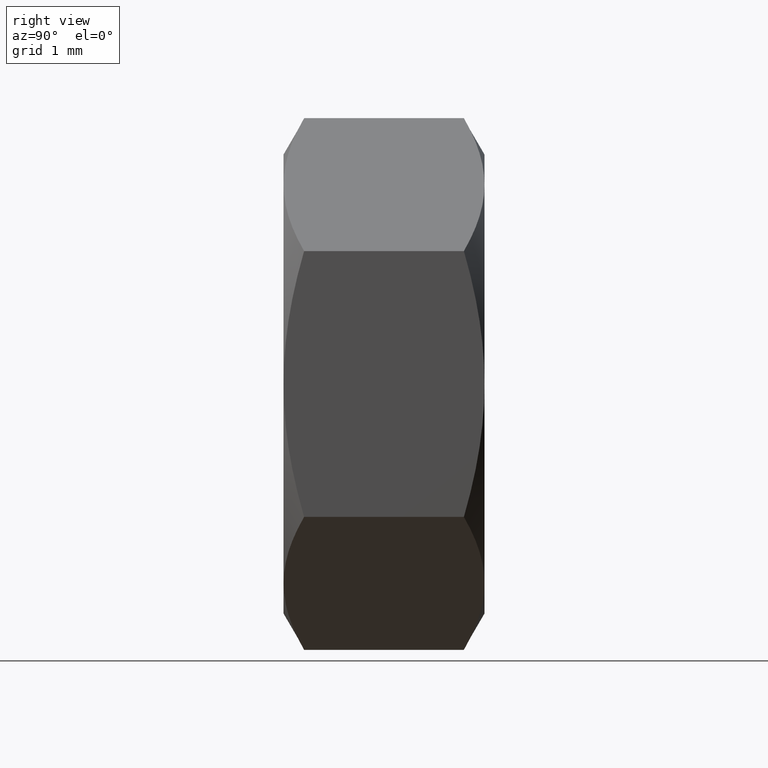
[diagram: clean part render]
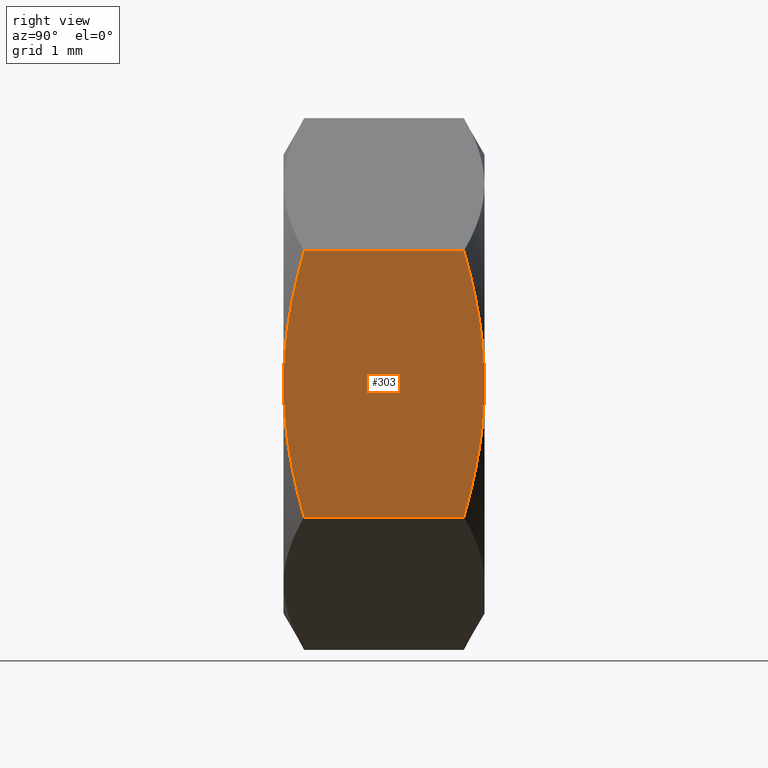
[diagram: same view with one face highlighted and labeled with its STEP entity id]
A machine part, right view. The second image highlights one B-rep face of the part: STEP entity #303.
In plain terms, the highlighted planar face has unit normal (-1, 0, 0).
Its self-contained STEP definition (entity closure, byte-faithful):
#22=PLANE('',#347);
#30=LINE('',#534,#37);
#31=LINE('',#548,#38);
#37=VECTOR('',#406,1000.);
#38=VECTOR('',#409,1000.);
#48=FACE_OUTER_BOUND('',#70,.T.);
#70=EDGE_LOOP('',(#234,#235,#236,#237,#238,#239));
#100=(
BOUNDED_CURVE()
B_SPLINE_CURVE(2,(#540,#541,#542),.UNSPECIFIED.,.F.,.F.)
B_SPLINE_CURVE_WITH_KNOTS((3,3),(-1.21715266222543,-0.88673192173023),
 .UNSPECIFIED.)
CURVE()
GEOMETRIC_REPRESENTATION_ITEM()
RATIONAL_B_SPLINE_CURVE((1.92205114401652,2.07072231740623,2.07072231740622))
REPRESENTATION_ITEM('')
);
#101=(
BOUNDED_CURVE()
B_SPLINE_CURVE(2,(#544,#545,#546),.UNSPECIFIED.,.F.,.F.)
B_SPLINE_CURVE_WITH_KNOTS((3,3),(-0.88673192173023,-0.556311181235028),
 .UNSPECIFIED.)
CURVE()
GEOMETRIC_REPRESENTATION_ITEM()
RATIONAL_B_SPLINE_CURVE((2.07072231740623,2.07072231740622,1.92205114401651))
REPRESENTATION_ITEM('')
);
#102=(
BOUNDED_CURVE()
B_SPLINE_CURVE(2,(#549,#550,#551),.UNSPECIFIED.,.F.,.F.)
B_SPLINE_CURVE_WITH_KNOTS((3,3),(0.886731921730231,1.21715266222543),
 .UNSPECIFIED.)
CURVE()
GEOMETRIC_REPRESENTATION_ITEM()
RATIONAL_B_SPLINE_CURVE((2.07072231740622,2.07072231740622,1.92205114401651))
REPRESENTATION_ITEM('')
);
#103=(
BOUNDED_CURVE()
B_SPLINE_CURVE(2,(#552,#553,#554),.UNSPECIFIED.,.F.,.F.)
B_SPLINE_CURVE_WITH_KNOTS((3,3),(0.556311181235031,0.886731921730231),
 .UNSPECIFIED.)
CURVE()
GEOMETRIC_REPRESENTATION_ITEM()
RATIONAL_B_SPLINE_CURVE((1.92205114401652,2.07072231740622,2.07072231740622))
REPRESENTATION_ITEM('')
);
#130=VERTEX_POINT('',#474);
#142=VERTEX_POINT('',#529);
#143=VERTEX_POINT('',#533);
#144=VERTEX_POINT('',#539);
#145=VERTEX_POINT('',#543);
#146=VERTEX_POINT('',#547);
#177=EDGE_CURVE('',#143,#142,#30,.T.);
#179=EDGE_CURVE('',#142,#144,#100,.T.);
#180=EDGE_CURVE('',#144,#145,#101,.T.);
#181=EDGE_CURVE('',#146,#145,#31,.T.);
#182=EDGE_CURVE('',#130,#146,#102,.T.);
#183=EDGE_CURVE('',#143,#130,#103,.T.);
#234=ORIENTED_EDGE('',*,*,#177,.T.);
#235=ORIENTED_EDGE('',*,*,#179,.T.);
#236=ORIENTED_EDGE('',*,*,#180,.T.);
#237=ORIENTED_EDGE('',*,*,#181,.F.);
#238=ORIENTED_EDGE('',*,*,#182,.F.);
#239=ORIENTED_EDGE('',*,*,#183,.F.);
#303=ADVANCED_FACE('',(#48),#22,.F.);
#347=AXIS2_PLACEMENT_3D('',#538,#407,#408);
#406=DIRECTION('',(0.,-1.,0.));
#407=DIRECTION('center_axis',(-1.,0.,2.73148108861301E-16));
#408=DIRECTION('ref_axis',(2.73148108861301E-16,0.,1.));
#409=DIRECTION('',(0.,-1.,0.));
#474=CARTESIAN_POINT('',(2.75,1.2,-7.51157299368578E-16));
#529=CARTESIAN_POINT('',(2.75,-0.954379906938143,1.58771324027146));
#533=CARTESIAN_POINT('',(2.75,0.954379906938143,1.58771324027146));
#534=CARTESIAN_POINT('',(2.75,1.2,1.58771324027146));
#538=CARTESIAN_POINT('Origin',(2.75,1.2,1.58771324027146));
#539=CARTESIAN_POINT('',(2.75,-1.2,-7.51157299368579E-16));
#540=CARTESIAN_POINT('Ctrl Pts',(2.75,-0.954379906931861,1.58771324029323));
#541=CARTESIAN_POINT('Ctrl Pts',(2.75,-1.2,0.73686027919433));
#542=CARTESIAN_POINT('Ctrl Pts',(2.75,-1.2,-2.14461014940104E-15));
#543=CARTESIAN_POINT('',(2.75,-0.954379906938137,-1.58771324027149));
#544=CARTESIAN_POINT('Ctrl Pts',(2.75,-1.2,-2.14461014940104E-15));
#545=CARTESIAN_POINT('Ctrl Pts',(2.75,-1.2,-0.736860279194339));
#546=CARTESIAN_POINT('Ctrl Pts',(2.75,-0.954379906931856,-1.58771324029324));
#547=CARTESIAN_POINT('',(2.75,0.954379906938137,-1.58771324027149));
#548=CARTESIAN_POINT('',(2.75,1.2,-1.58771324027149));
#549=CARTESIAN_POINT('Ctrl Pts',(2.75,1.2,-2.14461014940104E-15));
#550=CARTESIAN_POINT('Ctrl Pts',(2.75,1.2,-0.736860279194339));
#551=CARTESIAN_POINT('Ctrl Pts',(2.75,0.954379906931855,-1.58771324029324));
#552=CARTESIAN_POINT('Ctrl Pts',(2.75,0.954379906931861,1.58771324029322));
#553=CARTESIAN_POINT('Ctrl Pts',(2.75,1.2,0.736860279194329));
#554=CARTESIAN_POINT('Ctrl Pts',(2.75,1.2,-2.14461014940104E-15));